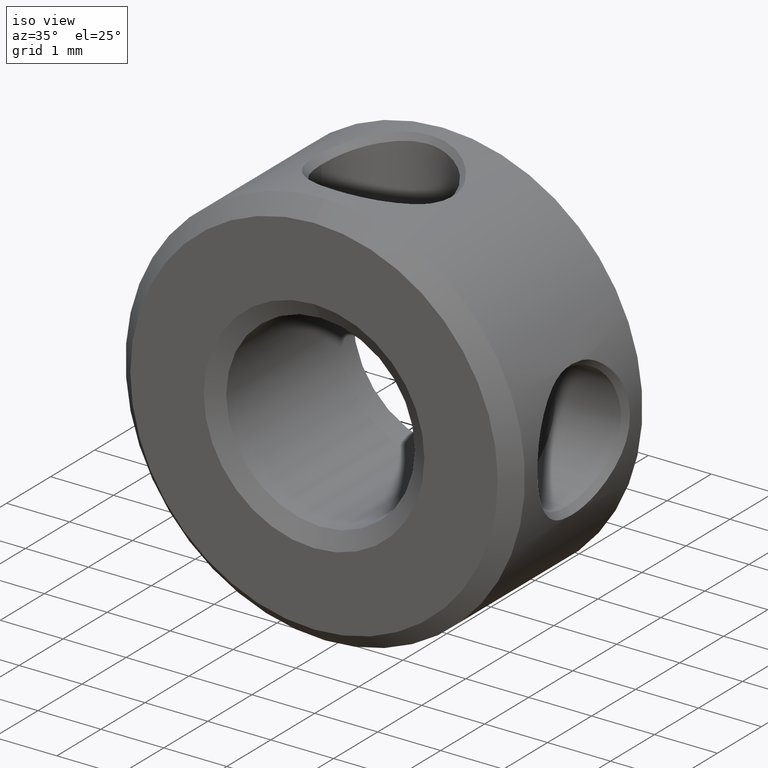
[diagram: clean part render]
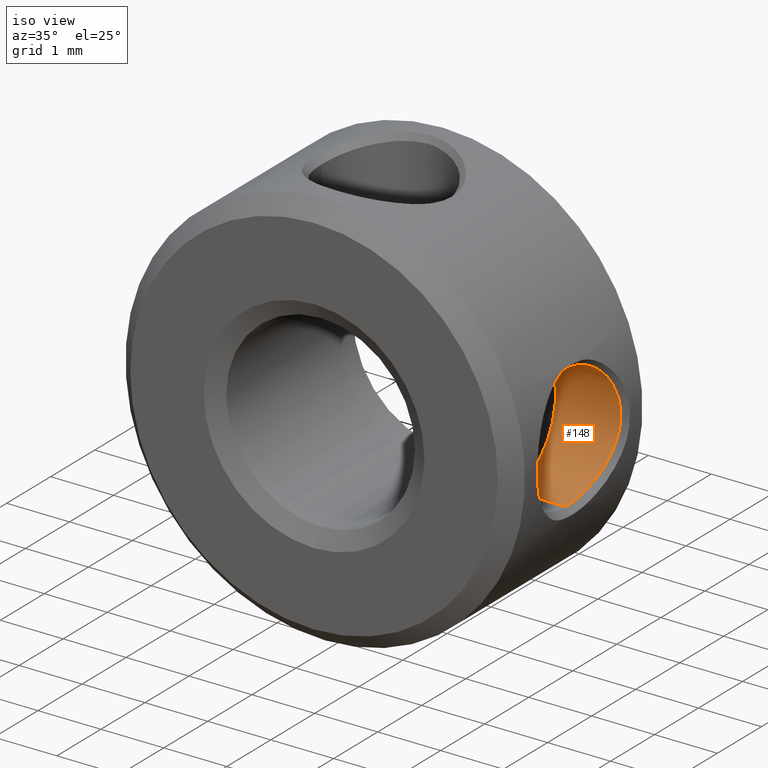
[diagram: same view with one face highlighted and labeled with its STEP entity id]
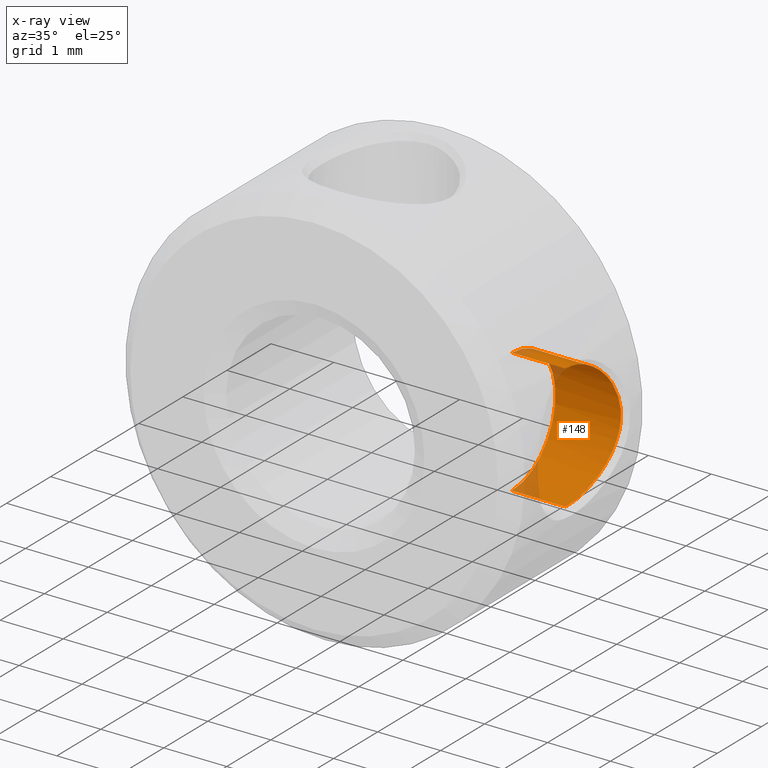
[diagram: x-ray of the same camera — body ghosted, the highlighted face saturated]
A machine part, iso view. The second image highlights one B-rep face of the part: STEP entity #148.
The next image is the same camera in x-ray: the body ghosted, the highlighted face saturated — about 8% of this face is hidden behind the body in this view.
In plain terms, the highlighted cylindrical surface (partial cylindrical patch) has radius 0.9906 mm, axis along (1, 0, 0).
Its self-contained STEP definition (entity closure, byte-faithful):
#13 = EDGE_CURVE ( 'NONE', #14, #16, #386, .T. ) ;
#14 = VERTEX_POINT ( 'NONE', #385 ) ;
#16 = VERTEX_POINT ( 'NONE', #387 ) ;
#21 = EDGE_CURVE ( 'NONE', #141, #14, #362, .T. ) ;
#140 = VERTEX_POINT ( 'NONE', #1027 ) ;
#141 = VERTEX_POINT ( 'NONE', #1026 ) ;
#143 = EDGE_CURVE ( 'NONE', #140, #16, #1024, .T. ) ;
#148 = ADVANCED_FACE ( 'NONE', ( #999 ), #1186, .F. ) ;
#156 = EDGE_LOOP ( 'NONE', ( #157, #158, #160, #161 ) ) ;
#157 = ORIENTED_EDGE ( 'NONE', *, *, #143, .F. ) ;
#158 = ORIENTED_EDGE ( 'NONE', *, *, #159, .F. ) ;
#159 = EDGE_CURVE ( 'NONE', #141, #140, #1121, .T. ) ;
#160 = ORIENTED_EDGE ( 'NONE', *, *, #21, .T. ) ;
#161 = ORIENTED_EDGE ( 'NONE', *, *, #13, .T. ) ;
#336 = DIRECTION ( 'NONE',  ( 1.000000000000000000, 0.0000000000000000000, 1.047445008332814600E-014 ) ) ;
#337 = VECTOR ( 'NONE', #336, 1000.000000000000000 ) ;
#338 = CARTESIAN_POINT ( 'NONE',  ( 2.032000000000010200, 0.0000000000000000000, -0.9905999999999786100 ) ) ;
#362 = LINE ( 'NONE', #338, #337 ) ;
#366 = CARTESIAN_POINT ( 'NONE',  ( 2.889510761236795400, 5.980578766341075900E-009, 0.9905999608675988300 ) ) ;
#367 = CARTESIAN_POINT ( 'NONE',  ( 2.889544508859981200, 0.08767896427795157700, 0.9905999994703775800 ) ) ;
#368 = CARTESIAN_POINT ( 'NONE',  ( 2.897282180020626100, 0.1974932561780752800, 0.9793444533418057500 ) ) ;
#369 = CARTESIAN_POINT ( 'NONE',  ( 2.928165458218620700, 0.4430261174754637800, 0.8954591022273387100 ) ) ;
#370 = CARTESIAN_POINT ( 'NONE',  ( 2.951316784774423500, 0.5792587049128492500, 0.8217558668201565600 ) ) ;
#371 = CARTESIAN_POINT ( 'NONE',  ( 3.013004579562531800, 0.8222071357980913500, 0.5786179894484296800 ) ) ;
#372 = CARTESIAN_POINT ( 'NONE',  ( 3.036129425969668300, 0.8958261354698182600, 0.4422629361371524500 ) ) ;
#373 = CARTESIAN_POINT ( 'NONE',  ( 3.066941016810104300, 0.9794752191667895900, 0.1967975221124451900 ) ) ;
#374 = CARTESIAN_POINT ( 'NONE',  ( 3.074627769841848000, 0.9906310724234440600, 0.08732937700601929600 ) ) ;
#375 = CARTESIAN_POINT ( 'NONE',  ( 3.074563139438589900, 0.9905688026714256600, -0.08803288540749872000 ) ) ;
#376 = CARTESIAN_POINT ( 'NONE',  ( 3.066828459070867700, 0.9792723767941892100, -0.1978166534418870400 ) ) ;
#377 = CARTESIAN_POINT ( 'NONE',  ( 3.035954368003230800, 0.8953513837242971200, -0.4432287400361788500 ) ) ;
#378 = CARTESIAN_POINT ( 'NONE',  ( 3.012808002902363400, 0.8216037652823421400, -0.5794212425963722900 ) ) ;
#379 = CARTESIAN_POINT ( 'NONE',  ( 2.951138362343229500, 0.5787091330834234200, -0.8221055058712744000 ) ) ;
#380 = CARTESIAN_POINT ( 'NONE',  ( 2.928015743063753500, 0.4424942509688776800, -0.8957023860017834200 ) ) ;
#381 = CARTESIAN_POINT ( 'NONE',  ( 2.897194906504983300, 0.1971806952780056400, -0.9793894525874141700 ) ) ;
#382 = CARTESIAN_POINT ( 'NONE',  ( 2.889496689225687900, 0.08751733893643419400, -0.9905999999999690600 ) ) ;
#384 = CARTESIAN_POINT ( 'NONE',  ( 2.889510672946486100, 1.084202172485504400E-016, -0.9905999999999695000 ) ) ;
#385 = CARTESIAN_POINT ( 'NONE',  ( 2.889510672946486100, 1.084202172485504400E-016, -0.9905999999999695000 ) ) ;
#386 = B_SPLINE_CURVE_WITH_KNOTS ( 'NONE', 3,
 ( #384, #382, #381, #380, #379, #378, #377, #376, #375, #374, #373, #372, #371, #370, #369, #368, #367, #366 ),
 .UNSPECIFIED., .F., .F.,
 ( 4, 2, 2, 2, 2, 2, 2, 2, 4 ),
 ( 0.0000000000000000000, 0.06248798433871970100, 0.1249759686774394000, 0.1874639530161590900, 0.2499519373548788100, 0.3124399216935985200, 0.3749279060323181800, 0.4374158903710379000, 0.4999038747097576100 ),
 .UNSPECIFIED. ) ;
#387 = CARTESIAN_POINT ( 'NONE',  ( 2.889510761236795400, 5.980578766341075900E-009, 0.9905999608675988300 ) ) ;
#999 = FACE_OUTER_BOUND ( 'NONE', #156, .T. ) ;
#1021 = DIRECTION ( 'NONE',  ( 1.000000000000000000, 0.0000000000000000000, 1.047445008332814600E-014 ) ) ;
#1022 = VECTOR ( 'NONE', #1021, 1000.000000000000000 ) ;
#1023 = CARTESIAN_POINT ( 'NONE',  ( 2.031999999999989400, 1.213135119235368100E-016, 0.9906000000000211300 ) ) ;
#1024 = LINE ( 'NONE', #1023, #1022 ) ;
#1026 = CARTESIAN_POINT ( 'NONE',  ( 2.032000000000010200, 0.0000000000000000000, -0.9905999999999786100 ) ) ;
#1027 = CARTESIAN_POINT ( 'NONE',  ( 2.031999999999989400, 1.213135119235368100E-016, 0.9906000000000211300 ) ) ;
#1118 = DIRECTION ( 'NONE',  ( 1.050710766793947400E-014, 0.0000000000000000000, -1.000000000000000000 ) ) ;
#1119 = DIRECTION ( 'NONE',  ( 1.000000000000000000, 0.0000000000000000000, 1.047445008332814600E-014 ) ) ;
#1120 = AXIS2_PLACEMENT_3D ( 'NONE', #1124, #1119, #1118 ) ;
#1121 = CIRCLE ( 'NONE', #1120, 0.9905999999999999300 ) ;
#1124 = CARTESIAN_POINT ( 'NONE',  ( 2.032000000000000000, 0.0000000000000000000, 2.128408256932279500E-014 ) ) ;
#1183 = DIRECTION ( 'NONE',  ( 1.050710766793947400E-014, 0.0000000000000000000, -1.000000000000000000 ) ) ;
#1184 = DIRECTION ( 'NONE',  ( 1.000000000000000000, 0.0000000000000000000, 1.047445008332814600E-014 ) ) ;
#1185 = AXIS2_PLACEMENT_3D ( 'NONE', #1189, #1184, #1183 ) ;
#1186 = CYLINDRICAL_SURFACE ( 'NONE', #1185, 0.9905999999999999300 ) ;
#1189 = CARTESIAN_POINT ( 'NONE',  ( 2.032000000000000000, 0.0000000000000000000, 2.128408256932279500E-014 ) ) ;